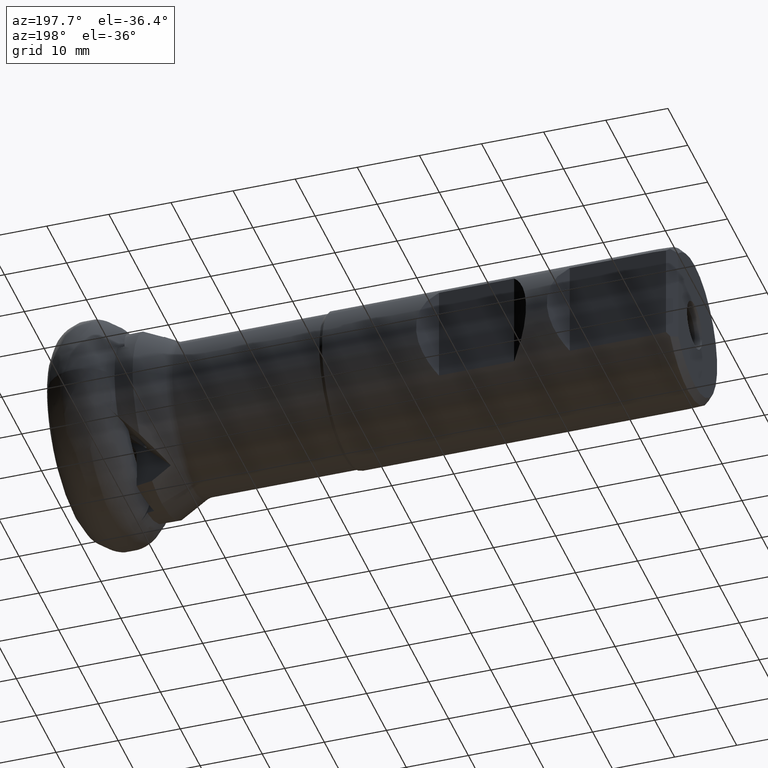
[diagram: clean part render]
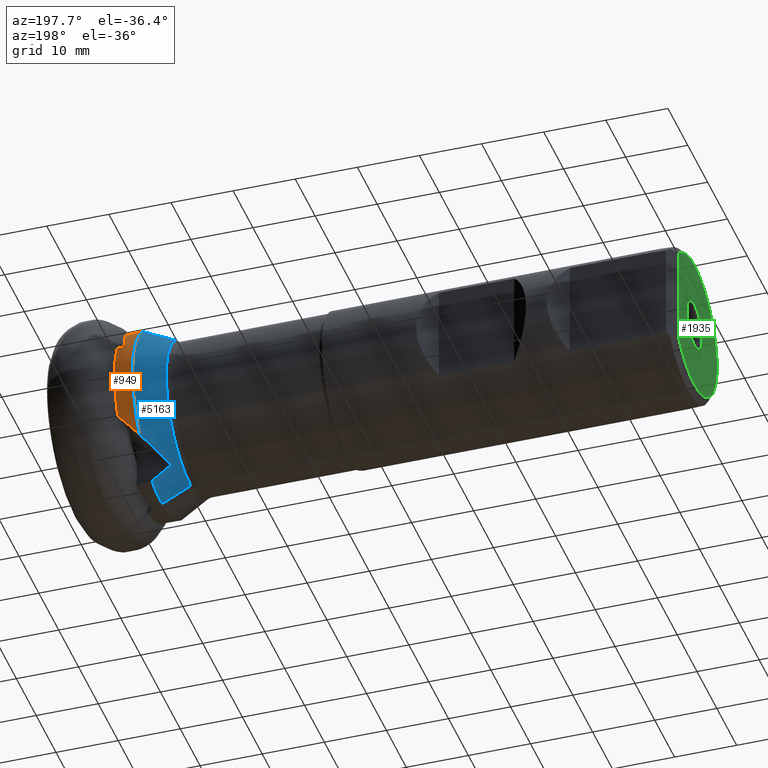
[diagram: same view with three faces highlighted in distinct colors, each labeled with its STEP entity id]
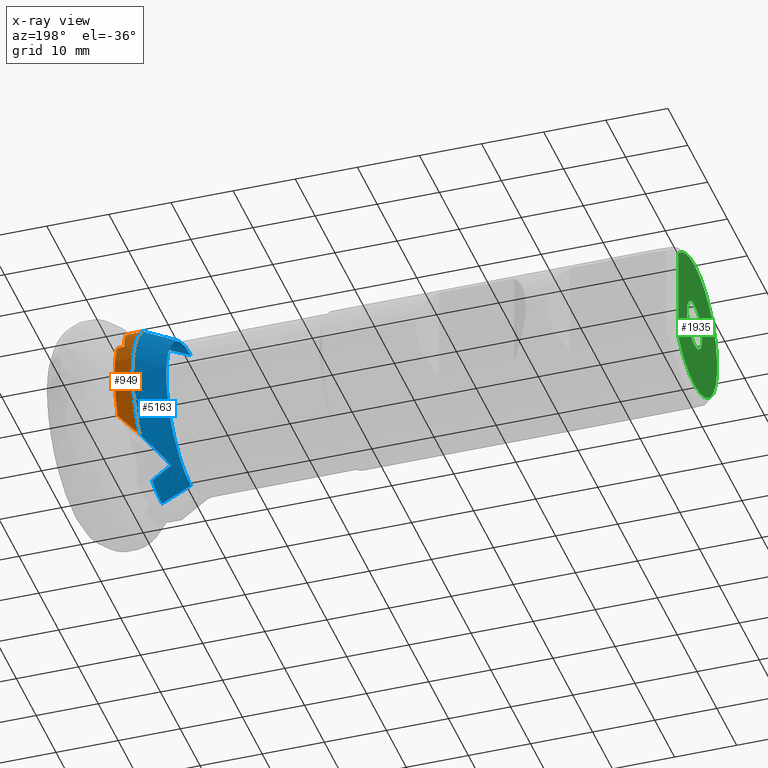
[diagram: x-ray of the same camera — body ghosted, the three highlighted faces saturated]
A machine part, auxiliary view with three faces highlighted in distinct colors.
The next image is the same camera in x-ray (body ghosted, the three faces saturated) — at least one of them is partly hidden behind the body in this view.
Their STEP definitions:

[orange] entity #949 — the highlighted cylindrical surface (partial cylindrical patch) has radius 14.8 mm, axis along (1, -0, -0).
#15 =( BOUNDED_CURVE ( )  B_SPLINE_CURVE ( 3, ( #552, #4208, #150, #4684 ),
 .UNSPECIFIED., .F., .F. ) 
 B_SPLINE_CURVE_WITH_KNOTS ( ( 4, 4 ),
 ( 1.908317546583268000, 2.119554386617848300 ),
 .UNSPECIFIED. ) 
 CURVE ( )  GEOMETRIC_REPRESENTATION_ITEM ( )  RATIONAL_B_SPLINE_CURVE ( ( 1.000000000000000000, 0.9962850384886385900, 0.9962850384886385900, 1.000000000000000000 ) ) 
 REPRESENTATION_ITEM ( '' )  );
#88 =( BOUNDED_CURVE ( )  B_SPLINE_CURVE ( 3, ( #3691, #2331, #2723, #4624 ),
 .UNSPECIFIED., .F., .F. ) 
 B_SPLINE_CURVE_WITH_KNOTS ( ( 4, 4 ),
 ( 4.814903298677184500, 4.826083396456294100 ),
 .UNSPECIFIED. ) 
 CURVE ( )  GEOMETRIC_REPRESENTATION_ITEM ( )  RATIONAL_B_SPLINE_CURVE ( ( 1.000000000000000000, 0.9999895838115950800, 0.9999895838115950800, 1.000000000000000000 ) ) 
 REPRESENTATION_ITEM ( '' )  );
#150 = CARTESIAN_POINT ( 'NONE',  ( -12.15393924666710000, 12.01608085241239000, -8.703093051427126500 ) ) ;
#176 = CARTESIAN_POINT ( 'NONE',  ( -10.09999999999999600, 13.19482137539079300, -6.703483338647920700 ) ) ;
#285 =( BOUNDED_CURVE ( )  B_SPLINE_CURVE ( 3, ( #4065, #4486, #5418, #3160 ),
 .UNSPECIFIED., .F., .F. ) 
 B_SPLINE_CURVE_WITH_KNOTS ( ( 4, 4 ),
 ( 1.888627582096908300, 1.914657409547313700 ),
 .UNSPECIFIED. ) 
 CURVE ( )  GEOMETRIC_REPRESENTATION_ITEM ( )  RATIONAL_B_SPLINE_CURVE ( ( 1.000000000000000000, 0.9999435381372452400, 0.9999435381372452400, 1.000000000000000000 ) ) 
 REPRESENTATION_ITEM ( '' )  );
#552 = CARTESIAN_POINT ( 'NONE',  ( -10.32234787044041700, 13.08606997958173000, -6.913376345136277300 ) ) ;
#628 = CARTESIAN_POINT ( 'NONE',  ( -10.25014878649021300, 13.12370017771278100, -6.842147558866763300 ) ) ;
#804 = DIRECTION ( 'NONE',  ( 0.0000000000000000000, 0.0000000000000000000, -1.000000000000000000 ) ) ;
#838 = FACE_OUTER_BOUND ( 'NONE', #1083, .T. ) ;
#860 = EDGE_CURVE ( 'NONE', #1380, #1680, #1814, .T. ) ;
#949 = ADVANCED_FACE ( 'NONE', ( #838 ), #985, .T. ) ;
#985 = CYLINDRICAL_SURFACE ( 'NONE', #2644, 14.80000000000000100 ) ;
#1040 = B_SPLINE_CURVE_WITH_KNOTS ( 'NONE', 3,
 ( #176, #3370, #628, #2931 ),
 .UNSPECIFIED., .F., .F.,
 ( 4, 4 ),
 ( 8.673617379884034500E-019, 0.0003245312246187262600 ),
 .UNSPECIFIED. ) ;
#1083 = EDGE_LOOP ( 'NONE', ( #5687, #3202, #5443, #5923, #4424, #5136, #1578 ) ) ;
#1262 = CARTESIAN_POINT ( 'NONE',  ( -10.09999999999999600, 13.19482137539079300, -6.703483338647920700 ) ) ;
#1346 = VERTEX_POINT ( 'NONE', #2157 ) ;
#1380 = VERTEX_POINT ( 'NONE', #4050 ) ;
#1536 = DIRECTION ( 'NONE',  ( 0.0000000000000000000, 0.0000000000000000000, -1.000000000000000000 ) ) ;
#1578 = ORIENTED_EDGE ( 'NONE', *, *, #3757, .F. ) ;
#1680 = VERTEX_POINT ( 'NONE', #4863 ) ;
#1766 = CARTESIAN_POINT ( 'NONE',  ( 0.0000000000000000000, 0.0000000000000000000, 0.0000000000000000000 ) ) ;
#1814 =( BOUNDED_CURVE ( )  B_SPLINE_CURVE ( 3, ( #2677, #3136, #5431, #3581 ),
 .UNSPECIFIED., .F., .F. ) 
 B_SPLINE_CURVE_WITH_KNOTS ( ( 4, 4 ),
 ( 4.609874662092192200, 5.030220235686698500 ),
 .UNSPECIFIED. ) 
 CURVE ( )  GEOMETRIC_REPRESENTATION_ITEM ( )  RATIONAL_B_SPLINE_CURVE ( ( 1.000000000000000000, 0.9853299206707900600, 0.9853299206707900600, 1.000000000000000000 ) ) 
 REPRESENTATION_ITEM ( '' )  );
#1985 = CARTESIAN_POINT ( 'NONE',  ( -13.00000000000000000, 0.0000000000000000000, 0.0000000000000000000 ) ) ;
#2157 = CARTESIAN_POINT ( 'NONE',  ( -12.99999999999999800, 11.34567367723410000, -9.503456676900107400 ) ) ;
#2166 = AXIS2_PLACEMENT_3D ( 'NONE', #2580, #4051, #804 ) ;
#2214 = CARTESIAN_POINT ( 'NONE',  ( -10.32234787044041700, 13.08606997958173000, -6.913376345136277300 ) ) ;
#2331 = CARTESIAN_POINT ( 'NONE',  ( -10.88007790933940200, 13.52970863694515000, 5.999168802552995700 ) ) ;
#2474 = VERTEX_POINT ( 'NONE', #2967 ) ;
#2580 = CARTESIAN_POINT ( 'NONE',  ( -10.10000000000000000, 0.0000000000000000000, 0.0000000000000000000 ) ) ;
#2644 = AXIS2_PLACEMENT_3D ( 'NONE', #1766, #3072, #4574 ) ;
#2677 = CARTESIAN_POINT ( 'NONE',  ( -11.27046886429647400, 13.50716382924403000, 6.049506202159140100 ) ) ;
#2723 = CARTESIAN_POINT ( 'NONE',  ( -10.48991755725684900, 13.55197170534055900, 5.948706163511712200 ) ) ;
#2931 = CARTESIAN_POINT ( 'NONE',  ( -10.32234787044041700, 13.08606997958173000, -6.913376345136277300 ) ) ;
#2967 = CARTESIAN_POINT ( 'NONE',  ( -10.10000000000000000, 13.57395233874130900, 5.898119861920349600 ) ) ;
#3019 = CIRCLE ( 'NONE', #4760, 14.80000000000000100 ) ;
#3059 = EDGE_CURVE ( 'NONE', #5811, #2474, #3771, .T. ) ;
#3072 = DIRECTION ( 'NONE',  ( 1.000000000000000000, -0.0000000000000000000, -0.0000000000000000000 ) ) ;
#3136 = CARTESIAN_POINT ( 'NONE',  ( -10.97840373540004900, 12.65323546624347800, 7.956132943589690100 ) ) ;
#3160 = CARTESIAN_POINT ( 'NONE',  ( -12.99999999999999800, 9.572136335375722300, 11.28779012814199400 ) ) ;
#3202 = ORIENTED_EDGE ( 'NONE', *, *, #5084, .T. ) ;
#3370 = CARTESIAN_POINT ( 'NONE',  ( -10.17600127560003500, 13.15995371716306100, -6.772115197466841400 ) ) ;
#3486 = EDGE_CURVE ( 'NONE', #5811, #5892, #1040, .T. ) ;
#3581 = CARTESIAN_POINT ( 'NONE',  ( -10.40759563834406800, 9.862679759632477800, 11.03483339062878500 ) ) ;
#3691 = CARTESIAN_POINT ( 'NONE',  ( -11.27046886429647400, 13.50716382924403000, 6.049506202159140100 ) ) ;
#3757 = EDGE_CURVE ( 'NONE', #1680, #4124, #285, .T. ) ;
#3771 = CIRCLE ( 'NONE', #2166, 14.80000000000000100 ) ;
#4050 = CARTESIAN_POINT ( 'NONE',  ( -11.27046886429647400, 13.50716382924403000, 6.049506202159140100 ) ) ;
#4051 = DIRECTION ( 'NONE',  ( 1.000000000000000000, -0.0000000000000000000, -0.0000000000000000000 ) ) ;
#4065 = CARTESIAN_POINT ( 'NONE',  ( -10.40759563834406800, 9.862679759632477800, 11.03483339062878500 ) ) ;
#4124 = VERTEX_POINT ( 'NONE', #4921 ) ;
#4208 = CARTESIAN_POINT ( 'NONE',  ( -11.25806038131026400, 12.59837615784285900, -7.836513631648162300 ) ) ;
#4300 = DIRECTION ( 'NONE',  ( 1.000000000000000000, -0.0000000000000000000, -0.0000000000000000000 ) ) ;
#4424 = ORIENTED_EDGE ( 'NONE', *, *, #4535, .T. ) ;
#4486 = CARTESIAN_POINT ( 'NONE',  ( -11.27556902784548900, 9.766932120159037100, 11.12041042404998900 ) ) ;
#4535 = EDGE_CURVE ( 'NONE', #5892, #1346, #15, .T. ) ;
#4574 = DIRECTION ( 'NONE',  ( 0.0000000000000000000, 0.0000000000000000000, -1.000000000000000000 ) ) ;
#4624 = CARTESIAN_POINT ( 'NONE',  ( -10.10000000000000000, 13.57395233874130900, 5.898119861920349600 ) ) ;
#4684 = CARTESIAN_POINT ( 'NONE',  ( -12.99999999999999800, 11.34567367723410000, -9.503456676900107400 ) ) ;
#4752 = EDGE_CURVE ( 'NONE', #1346, #4124, #3019, .T. ) ;
#4760 = AXIS2_PLACEMENT_3D ( 'NONE', #1985, #4300, #1536 ) ;
#4863 = CARTESIAN_POINT ( 'NONE',  ( -10.40759563834406800, 9.862679759632477800, 11.03483339062878500 ) ) ;
#4921 = CARTESIAN_POINT ( 'NONE',  ( -12.99999999999999800, 9.572136335375722300, 11.28779012814199400 ) ) ;
#5084 = EDGE_CURVE ( 'NONE', #1380, #2474, #88, .T. ) ;
#5136 = ORIENTED_EDGE ( 'NONE', *, *, #4752, .T. ) ;
#5418 = CARTESIAN_POINT ( 'NONE',  ( -12.13975260847884200, 9.670078843557043100, 11.20473409762607600 ) ) ;
#5431 = CARTESIAN_POINT ( 'NONE',  ( -10.68649703225741600, 11.42032048242077600, 9.642650012267139900 ) ) ;
#5443 = ORIENTED_EDGE ( 'NONE', *, *, #3059, .F. ) ;
#5687 = ORIENTED_EDGE ( 'NONE', *, *, #860, .F. ) ;
#5811 = VERTEX_POINT ( 'NONE', #1262 ) ;
#5892 = VERTEX_POINT ( 'NONE', #2214 ) ;
#5923 = ORIENTED_EDGE ( 'NONE', *, *, #3486, .T. ) ;

[blue] entity #5163 — the highlighted conical surface has half-angle 27.07 deg.
#29 = VERTEX_POINT ( 'NONE', #4590 ) ;
#95 = EDGE_CURVE ( 'NONE', #406, #5206, #253, .T. ) ;
#181 = ORIENTED_EDGE ( 'NONE', *, *, #3926, .T. ) ;
#253 = CIRCLE ( 'NONE', #2260, 14.80000000000000100 ) ;
#269 = DIRECTION ( 'NONE',  ( 0.0000000000000000000, 0.0000000000000000000, -1.000000000000000000 ) ) ;
#406 = VERTEX_POINT ( 'NONE', #4082 ) ;
#455 = ORIENTED_EDGE ( 'NONE', *, *, #1778, .F. ) ;
#476 = CARTESIAN_POINT ( 'NONE',  ( -13.00000000000000000, 0.0000000000000000000, 0.0000000000000000000 ) ) ;
#480 = EDGE_CURVE ( 'NONE', #406, #1349, #4471, .T. ) ;
#502 = CARTESIAN_POINT ( 'NONE',  ( -14.06615385650485800, 8.949531164694903400, 11.10134706109054800 ) ) ;
#503 = AXIS2_PLACEMENT_3D ( 'NONE', #2468, #3841, #269 ) ;
#589 = EDGE_CURVE ( 'NONE', #2445, #29, #2623, .T. ) ;
#739 = CARTESIAN_POINT ( 'NONE',  ( -14.34760054345022700, 9.479497450322828200, -10.65882825119748400 ) ) ;
#798 = ORIENTED_EDGE ( 'NONE', *, *, #589, .F. ) ;
#876 = AXIS2_PLACEMENT_3D ( 'NONE', #476, #5665, #2411 ) ;
#966 = CARTESIAN_POINT ( 'NONE',  ( -16.17783607441465700, 7.676215209147653000, 10.70888698456492900 ) ) ;
#980 = EDGE_CURVE ( 'NONE', #4124, #1349, #3328, .T. ) ;
#1060 = CARTESIAN_POINT ( 'NONE',  ( -13.00000000000000000, 0.0000000000000000000, 0.0000000000000000000 ) ) ;
#1089 = CONICAL_SURFACE ( 'NONE', #876, 14.80000000000000100, 0.4724632771209952800 ) ;
#1142 = DIRECTION ( 'NONE',  ( 0.8904500000000020700, 5.573135989083046100E-017, 0.4550810889281121700 ) ) ;
#1176 = ORIENTED_EDGE ( 'NONE', *, *, #480, .T. ) ;
#1231 = VERTEX_POINT ( 'NONE', #3902 ) ;
#1346 = VERTEX_POINT ( 'NONE', #2157 ) ;
#1349 = VERTEX_POINT ( 'NONE', #4857 ) ;
#1350 = CARTESIAN_POINT ( 'NONE',  ( -15.12642848623644600, 8.318914584901296600, 10.90932450875680400 ) ) ;
#1455 = VERTEX_POINT ( 'NONE', #5402 ) ;
#1536 = DIRECTION ( 'NONE',  ( 0.0000000000000000000, 0.0000000000000000000, -1.000000000000000000 ) ) ;
#1778 = EDGE_CURVE ( 'NONE', #3061, #1231, #3830, .T. ) ;
#1784 = DIRECTION ( 'NONE',  ( 0.0000000000000000000, 0.0000000000000000000, -1.000000000000000000 ) ) ;
#1790 = CIRCLE ( 'NONE', #503, 12.41909999999999800 ) ;
#1853 = CARTESIAN_POINT ( 'NONE',  ( -12.99999999999999800, 2.557398067343425100, 14.57736996598316800 ) ) ;
#1985 = CARTESIAN_POINT ( 'NONE',  ( -13.00000000000000000, 0.0000000000000000000, 0.0000000000000000000 ) ) ;
#2030 = CARTESIAN_POINT ( 'NONE',  ( -14.06615385650485800, 5.139282988784804800, -13.30119487113154800 ) ) ;
#2072 =( BOUNDED_CURVE ( )  B_SPLINE_CURVE ( 3, ( #4409, #739, #2607, #5841 ),
 .UNSPECIFIED., .F., .F. ) 
 B_SPLINE_CURVE_WITH_KNOTS ( ( 4, 4 ),
 ( 2.504081257777786900, 2.797725812973129100 ),
 .UNSPECIFIED. ) 
 CURVE ( )  GEOMETRIC_REPRESENTATION_ITEM ( )  RATIONAL_B_SPLINE_CURVE ( ( 1.000000000000000000, 0.9928273051846039400, 0.9928273051846039400, 1.000000000000000000 ) ) 
 REPRESENTATION_ITEM ( '' )  );
#2082 = ORIENTED_EDGE ( 'NONE', *, *, #4752, .F. ) ;
#2157 = CARTESIAN_POINT ( 'NONE',  ( -12.99999999999999800, 11.34567367723410000, -9.503456676900107400 ) ) ;
#2260 = AXIS2_PLACEMENT_3D ( 'NONE', #1060, #3833, #4297 ) ;
#2394 = ORIENTED_EDGE ( 'NONE', *, *, #2766, .F. ) ;
#2411 = DIRECTION ( 'NONE',  ( 0.0000000000000000000, 0.0000000000000000000, -1.000000000000000000 ) ) ;
#2445 = VERTEX_POINT ( 'NONE', #2527 ) ;
#2468 = CARTESIAN_POINT ( 'NONE',  ( -17.65866953512302100, 0.0000000000000000000, 0.0000000000000000000 ) ) ;
#2527 = CARTESIAN_POINT ( 'NONE',  ( -12.99999999999999800, 4.989444835870438400, -13.93360829899440900 ) ) ;
#2558 = EDGE_CURVE ( 'NONE', #1346, #29, #2072, .T. ) ;
#2600 = VECTOR ( 'NONE', #4388, 1000.000000000000000 ) ;
#2607 = CARTESIAN_POINT ( 'NONE',  ( -15.41453200871103500, 7.495395053710077500, -11.49777381550386600 ) ) ;
#2623 = B_SPLINE_CURVE_WITH_KNOTS ( 'NONE', 3,
 ( #4352, #2030, #5572, #4304 ),
 .UNSPECIFIED., .F., .F.,
 ( 4, 4 ),
 ( 2.341977502578641300E-007, 0.003745598037497741600 ),
 .UNSPECIFIED. ) ;
#2696 = CARTESIAN_POINT ( 'NONE',  ( -16.17783607441465700, 7.676215209147653000, 10.70888698456492900 ) ) ;
#2766 = EDGE_CURVE ( 'NONE', #1231, #2445, #5574, .T. ) ;
#2938 = EDGE_CURVE ( 'NONE', #1455, #5206, #4132, .T. ) ;
#3019 = CIRCLE ( 'NONE', #4760, 14.80000000000000100 ) ;
#3061 = VERTEX_POINT ( 'NONE', #5283 ) ;
#3069 = EDGE_LOOP ( 'NONE', ( #181, #4026, #5865, #1176, #4847, #2082, #5234, #798, #2394, #455 ) ) ;
#3328 = B_SPLINE_CURVE_WITH_KNOTS ( 'NONE', 3,
 ( #5546, #502, #1350, #966 ),
 .UNSPECIFIED., .F., .F.,
 ( 4, 4 ),
 ( 2.341977502594237600E-007, 0.003745598037497741600 ),
 .UNSPECIFIED. ) ;
#3395 = FACE_OUTER_BOUND ( 'NONE', #3069, .T. ) ;
#3480 = CARTESIAN_POINT ( 'NONE',  ( -13.00000000000000000, 0.0000000000000000000, -14.80000000000000100 ) ) ;
#3662 = CARTESIAN_POINT ( 'NONE',  ( -14.34760054345023200, 4.491067314950998800, 13.53889973268809000 ) ) ;
#3792 = CARTESIAN_POINT ( 'NONE',  ( -13.00000000000000000, 1.812477262738082500E-015, 14.80000000000000100 ) ) ;
#3828 = AXIS2_PLACEMENT_3D ( 'NONE', #5877, #4097, #1784 ) ;
#3830 = LINE ( 'NONE', #3480, #2600 ) ;
#3833 = DIRECTION ( 'NONE',  ( 1.000000000000000000, -0.0000000000000000000, -0.0000000000000000000 ) ) ;
#3841 = DIRECTION ( 'NONE',  ( 1.000000000000000000, -0.0000000000000000000, -0.0000000000000000000 ) ) ;
#3902 = CARTESIAN_POINT ( 'NONE',  ( -13.00000000000000000, 0.0000000000000000000, -14.80000000000000100 ) ) ;
#3926 = EDGE_CURVE ( 'NONE', #3061, #1455, #1790, .T. ) ;
#4026 = ORIENTED_EDGE ( 'NONE', *, *, #2938, .T. ) ;
#4082 = CARTESIAN_POINT ( 'NONE',  ( -12.99999999999999800, 2.557398067343425100, 14.57736996598316800 ) ) ;
#4097 = DIRECTION ( 'NONE',  ( 1.000000000000000000, -0.0000000000000000000, -0.0000000000000000000 ) ) ;
#4124 = VERTEX_POINT ( 'NONE', #4921 ) ;
#4132 = LINE ( 'NONE', #3792, #4630 ) ;
#4297 = DIRECTION ( 'NONE',  ( 0.0000000000000000000, 0.0000000000000000000, -1.000000000000000000 ) ) ;
#4300 = DIRECTION ( 'NONE',  ( 1.000000000000000000, -0.0000000000000000000, -0.0000000000000000000 ) ) ;
#4304 = CARTESIAN_POINT ( 'NONE',  ( -16.17783607441465700, 5.436060570316046300, -12.00224086832075800 ) ) ;
#4352 = CARTESIAN_POINT ( 'NONE',  ( -12.99999999999999800, 4.989444835870438400, -13.93360829899440900 ) ) ;
#4388 = DIRECTION ( 'NONE',  ( 0.8904500000000020700, 0.0000000000000000000, -0.4550810889281121700 ) ) ;
#4409 = CARTESIAN_POINT ( 'NONE',  ( -12.99999999999999800, 11.34567367723410000, -9.503456676900107400 ) ) ;
#4471 =( BOUNDED_CURVE ( )  B_SPLINE_CURVE ( 3, ( #1853, #3662, #4545, #2696 ),
 .UNSPECIFIED., .F., .T. ) 
 B_SPLINE_CURVE_WITH_KNOTS ( ( 4, 4 ),
 ( 2.504081257777787300, 2.797725812973128200 ),
 .UNSPECIFIED. ) 
 CURVE ( )  GEOMETRIC_REPRESENTATION_ITEM ( )  RATIONAL_B_SPLINE_CURVE ( ( 1.000000000000000000, 0.9928273051846039400, 0.9928273051846039400, 1.000000000000000000 ) ) 
 REPRESENTATION_ITEM ( '' )  );
#4545 = CARTESIAN_POINT ( 'NONE',  ( -15.41453200871103700, 6.209666684338956500, 12.24008943566504100 ) ) ;
#4590 = CARTESIAN_POINT ( 'NONE',  ( -16.17783607441465700, 5.436060570316046300, -12.00224086832075800 ) ) ;
#4630 = VECTOR ( 'NONE', #1142, 1000.000000000000000 ) ;
#4752 = EDGE_CURVE ( 'NONE', #1346, #4124, #3019, .T. ) ;
#4760 = AXIS2_PLACEMENT_3D ( 'NONE', #1985, #4300, #1536 ) ;
#4847 = ORIENTED_EDGE ( 'NONE', *, *, #980, .F. ) ;
#4857 = CARTESIAN_POINT ( 'NONE',  ( -16.17783607441465700, 7.676215209147653000, 10.70888698456492900 ) ) ;
#4921 = CARTESIAN_POINT ( 'NONE',  ( -12.99999999999999800, 9.572136335375722300, 11.28779012814199400 ) ) ;
#5163 = ADVANCED_FACE ( 'NONE', ( #3395 ), #1089, .T. ) ;
#5206 = VERTEX_POINT ( 'NONE', #5622 ) ;
#5234 = ORIENTED_EDGE ( 'NONE', *, *, #2558, .T. ) ;
#5283 = CARTESIAN_POINT ( 'NONE',  ( -17.65866953512302100, 0.0000000000000000000, -12.41909999999999800 ) ) ;
#5402 = CARTESIAN_POINT ( 'NONE',  ( -17.65866953512302100, 1.666689184533586200E-015, 12.41909999999999800 ) ) ;
#5546 = CARTESIAN_POINT ( 'NONE',  ( -12.99999999999999800, 9.572136335375722300, 11.28779012814199400 ) ) ;
#5572 = CARTESIAN_POINT ( 'NONE',  ( -15.12642848623644600, 5.288294870261052200, -12.65905361681575200 ) ) ;
#5574 = CIRCLE ( 'NONE', #3828, 14.80000000000000100 ) ;
#5622 = CARTESIAN_POINT ( 'NONE',  ( -13.00000000000000000, 1.812477262738082500E-015, 14.80000000000000100 ) ) ;
#5665 = DIRECTION ( 'NONE',  ( 1.000000000000000000, -0.0000000000000000000, -0.0000000000000000000 ) ) ;
#5841 = CARTESIAN_POINT ( 'NONE',  ( -16.17783607441465700, 5.436060570316046300, -12.00224086832075800 ) ) ;
#5865 = ORIENTED_EDGE ( 'NONE', *, *, #95, .F. ) ;
#5877 = CARTESIAN_POINT ( 'NONE',  ( -13.00000000000000000, 0.0000000000000000000, 0.0000000000000000000 ) ) ;

[green] entity #1935 — the highlighted planar face has unit normal (-1, 0, 0).
#161 = VERTEX_POINT ( 'NONE', #4888 ) ;
#206 = VECTOR ( 'NONE', #2663, 1000.000000000000000 ) ;
#571 = AXIS2_PLACEMENT_3D ( 'NONE', #1828, #4121, #911 ) ;
#650 = CIRCLE ( 'NONE', #2731, 11.39999999999998800 ) ;
#669 = ORIENTED_EDGE ( 'NONE', *, *, #2699, .F. ) ;
#799 = EDGE_CURVE ( 'NONE', #161, #5212, #4793, .T. ) ;
#911 = DIRECTION ( 'NONE',  ( 0.0000000000000000000, 0.0000000000000000000, -1.000000000000000000 ) ) ;
#975 = VERTEX_POINT ( 'NONE', #5490 ) ;
#1173 = CIRCLE ( 'NONE', #1909, 3.827350269189615100 ) ;
#1311 = CARTESIAN_POINT ( 'NONE',  ( -98.75000000000000000, 8.199999999999992200, -25.00000000000000000 ) ) ;
#1333 = DIRECTION ( 'NONE',  ( -1.000000000000000000, 0.0000000000000000000, 0.0000000000000000000 ) ) ;
#1372 = FACE_OUTER_BOUND ( 'NONE', #5415, .T. ) ;
#1528 = ORIENTED_EDGE ( 'NONE', *, *, #1926, .F. ) ;
#1687 = CIRCLE ( 'NONE', #571, 11.39999999999998800 ) ;
#1763 = DIRECTION ( 'NONE',  ( 0.0000000000000000000, 0.0000000000000000000, -1.000000000000000000 ) ) ;
#1782 = DIRECTION ( 'NONE',  ( 1.000000000000000000, -0.0000000000000000000, -0.0000000000000000000 ) ) ;
#1828 = CARTESIAN_POINT ( 'NONE',  ( -98.75000000000000000, 0.0000000000000000000, 0.0000000000000000000 ) ) ;
#1909 = AXIS2_PLACEMENT_3D ( 'NONE', #4806, #3925, #3943 ) ;
#1926 = EDGE_CURVE ( 'NONE', #4100, #161, #3981, .T. ) ;
#1935 = ADVANCED_FACE ( 'NONE', ( #1372, #2728 ), #2710, .T. ) ;
#2116 = ORIENTED_EDGE ( 'NONE', *, *, #4675, .T. ) ;
#2383 = DIRECTION ( 'NONE',  ( 1.000000000000000000, -0.0000000000000000000, -0.0000000000000000000 ) ) ;
#2663 = DIRECTION ( 'NONE',  ( -0.0000000000000000000, -0.0000000000000000000, 1.000000000000000000 ) ) ;
#2699 = EDGE_CURVE ( 'NONE', #5212, #975, #1687, .T. ) ;
#2710 = PLANE ( 'NONE',  #4693 ) ;
#2728 = FACE_BOUND ( 'NONE', #5364, .T. ) ;
#2731 = AXIS2_PLACEMENT_3D ( 'NONE', #4539, #1782, #1763 ) ;
#2791 = ORIENTED_EDGE ( 'NONE', *, *, #4846, .T. ) ;
#3095 = DIRECTION ( 'NONE',  ( 0.0000000000000000000, 0.0000000000000000000, -1.000000000000000000 ) ) ;
#3195 = AXIS2_PLACEMENT_3D ( 'NONE', #5876, #3557, #3095 ) ;
#3254 = DIRECTION ( 'NONE',  ( 0.0000000000000000000, 0.0000000000000000000, 1.000000000000000000 ) ) ;
#3557 = DIRECTION ( 'NONE',  ( 1.000000000000000000, -0.0000000000000000000, -0.0000000000000000000 ) ) ;
#3826 = CARTESIAN_POINT ( 'NONE',  ( -98.75000000000000000, 1.457329690985349600E-015, 11.39999999999998800 ) ) ;
#3910 = ORIENTED_EDGE ( 'NONE', *, *, #799, .F. ) ;
#3925 = DIRECTION ( 'NONE',  ( 1.000000000000000000, -0.0000000000000000000, -0.0000000000000000000 ) ) ;
#3943 = DIRECTION ( 'NONE',  ( 0.0000000000000000000, 0.0000000000000000000, -1.000000000000000000 ) ) ;
#3967 = CARTESIAN_POINT ( 'NONE',  ( -98.75000000000000000, 8.199999999999992200, -7.919595949289323800 ) ) ;
#3981 = LINE ( 'NONE', #1311, #206 ) ;
#3998 = CIRCLE ( 'NONE', #4672, 3.827350269189615100 ) ;
#4100 = VERTEX_POINT ( 'NONE', #3967 ) ;
#4121 = DIRECTION ( 'NONE',  ( 1.000000000000000000, -0.0000000000000000000, -0.0000000000000000000 ) ) ;
#4196 = VERTEX_POINT ( 'NONE', #5920 ) ;
#4199 = DIRECTION ( 'NONE',  ( 0.0000000000000000000, 0.0000000000000000000, -1.000000000000000000 ) ) ;
#4225 = EDGE_CURVE ( 'NONE', #975, #4100, #650, .T. ) ;
#4231 = VERTEX_POINT ( 'NONE', #4498 ) ;
#4498 = CARTESIAN_POINT ( 'NONE',  ( -98.75000000000000000, 0.0000000000000000000, 3.827350269189615100 ) ) ;
#4539 = CARTESIAN_POINT ( 'NONE',  ( -98.75000000000000000, 0.0000000000000000000, 0.0000000000000000000 ) ) ;
#4672 = AXIS2_PLACEMENT_3D ( 'NONE', #5528, #2383, #4199 ) ;
#4675 = EDGE_CURVE ( 'NONE', #4196, #4231, #3998, .T. ) ;
#4693 = AXIS2_PLACEMENT_3D ( 'NONE', #5056, #1333, #3254 ) ;
#4793 = CIRCLE ( 'NONE', #3195, 11.39999999999998800 ) ;
#4806 = CARTESIAN_POINT ( 'NONE',  ( -98.75000000000000000, 0.0000000000000000000, 0.0000000000000000000 ) ) ;
#4846 = EDGE_CURVE ( 'NONE', #4231, #4196, #1173, .T. ) ;
#4888 = CARTESIAN_POINT ( 'NONE',  ( -98.75000000000000000, 8.199999999999992200, 7.919595949289323800 ) ) ;
#5056 = CARTESIAN_POINT ( 'NONE',  ( -98.75000000000000000, 11.39999999999998800, 0.0000000000000000000 ) ) ;
#5212 = VERTEX_POINT ( 'NONE', #3826 ) ;
#5364 = EDGE_LOOP ( 'NONE', ( #2791, #2116 ) ) ;
#5415 = EDGE_LOOP ( 'NONE', ( #1528, #5734, #669, #3910 ) ) ;
#5490 = CARTESIAN_POINT ( 'NONE',  ( -98.75000000000000000, 0.0000000000000000000, -11.39999999999998800 ) ) ;
#5528 = CARTESIAN_POINT ( 'NONE',  ( -98.75000000000000000, 0.0000000000000000000, 0.0000000000000000000 ) ) ;
#5734 = ORIENTED_EDGE ( 'NONE', *, *, #4225, .F. ) ;
#5876 = CARTESIAN_POINT ( 'NONE',  ( -98.75000000000000000, 0.0000000000000000000, 0.0000000000000000000 ) ) ;
#5920 = CARTESIAN_POINT ( 'NONE',  ( -98.75000000000000000, 4.687152256378822200E-016, -3.827350269189615100 ) ) ;